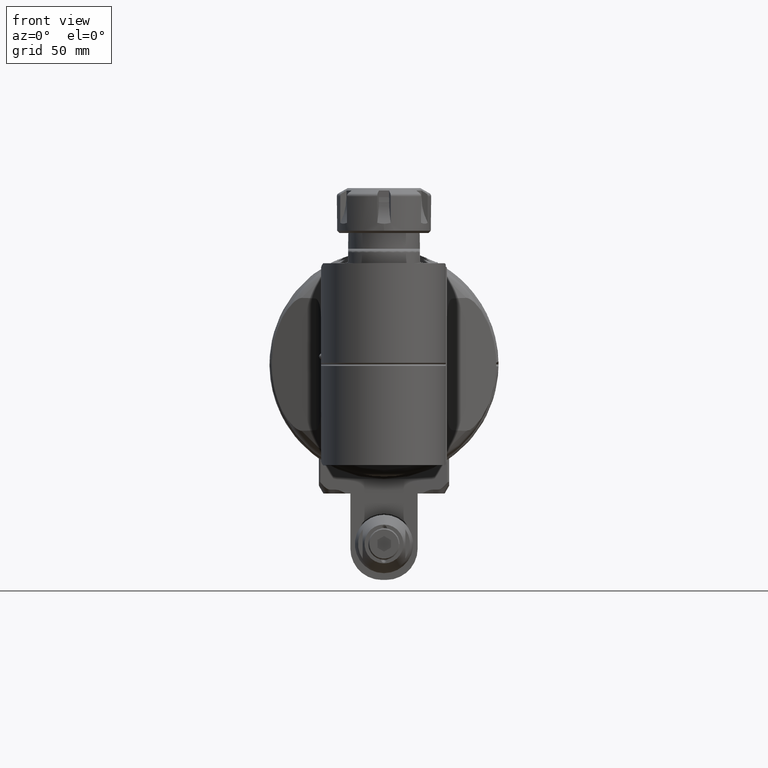
[diagram: clean part render]
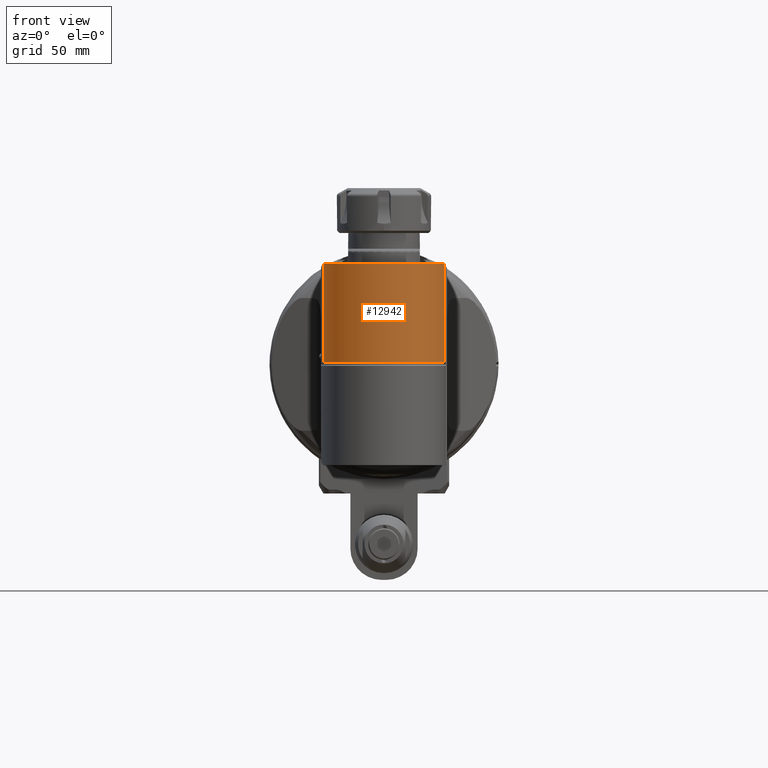
[diagram: same view with one face highlighted and labeled with its STEP entity id]
A machine part, front view. The second image highlights one B-rep face of the part: STEP entity #12942.
In plain terms, the highlighted cylindrical surface (partial cylindrical patch) has radius 27 mm, axis along (-0, 0, -1).
Its self-contained STEP definition (entity closure, byte-faithful):
#1147=CYLINDRICAL_SURFACE('',#14454,27.);
#1828=FACE_OUTER_BOUND('',#2732,.T.);
#2732=EDGE_LOOP('',(#11441,#11442,#11443,#11444));
#3537=CIRCLE('',#14452,27.);
#3539=CIRCLE('',#14455,27.);
#4306=LINE('',#53021,#5101);
#4307=LINE('',#53024,#5102);
#5101=VECTOR('',#17966,44.33431457505);
#5102=VECTOR('',#17969,44.33431457505);
#6288=VERTEX_POINT('',#52985);
#6289=VERTEX_POINT('',#52986);
#6297=VERTEX_POINT('',#53020);
#6298=VERTEX_POINT('',#53022);
#8051=EDGE_CURVE('',#6288,#6289,#3537,.T.);
#8061=EDGE_CURVE('',#6288,#6297,#4306,.T.);
#8062=EDGE_CURVE('',#6298,#6297,#3539,.T.);
#8063=EDGE_CURVE('',#6298,#6289,#4307,.T.);
#11441=ORIENTED_EDGE('',*,*,#8051,.F.);
#11442=ORIENTED_EDGE('',*,*,#8061,.T.);
#11443=ORIENTED_EDGE('',*,*,#8062,.F.);
#11444=ORIENTED_EDGE('',*,*,#8063,.T.);
#12942=ADVANCED_FACE('',(#1828),#1147,.T.);
#14452=AXIS2_PLACEMENT_3D('',#52987,#17958,#17959);
#14454=AXIS2_PLACEMENT_3D('',#53019,#17964,#17965);
#14455=AXIS2_PLACEMENT_3D('',#53023,#17967,#17968);
#17958=DIRECTION('center_axis',(0.,-1.,0.));
#17959=DIRECTION('ref_axis',(0.0871557427475262,0.,-0.996194698091757));
#17964=DIRECTION('center_axis',(0.,1.,0.));
#17965=DIRECTION('ref_axis',(1.,0.,1.22464679914735E-16));
#17966=DIRECTION('',(2.660469554266E-14,1.,0.));
#17967=DIRECTION('center_axis',(0.,1.,0.));
#17968=DIRECTION('ref_axis',(1.,0.,0.));
#17969=DIRECTION('',(2.75663110442E-14,-1.,0.));
#52985=CARTESIAN_POINT('',(92.35320505419,-45.,-26.89725684848));
#52986=CARTESIAN_POINT('',(92.35320505419,-45.,26.89725684848));
#52987=CARTESIAN_POINT('Origin',(90.,-45.,0.));
#53019=CARTESIAN_POINT('Origin',(90.,-54.0000024,0.));
#53020=CARTESIAN_POINT('',(92.35320505419,-0.6656854249492,-26.89725684848));
#53021=CARTESIAN_POINT('',(92.35320505419,-45.,-26.89725684848));
#53022=CARTESIAN_POINT('',(92.35320505419,-0.6656854249492,26.89725684848));
#53023=CARTESIAN_POINT('Origin',(90.,-0.6656854249492,0.));
#53024=CARTESIAN_POINT('',(92.35320505419,-0.6656854249492,26.89725684848));